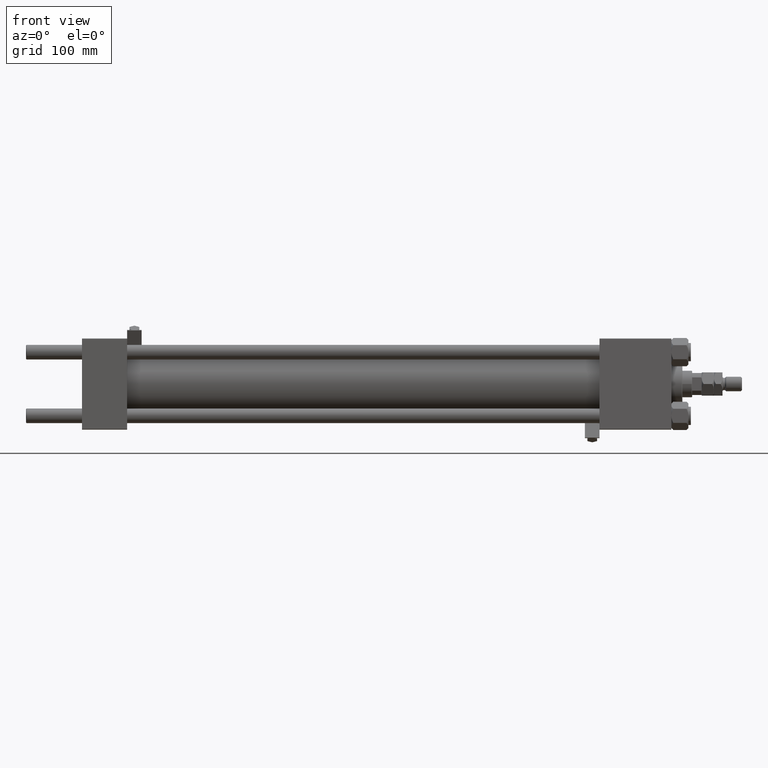
[diagram: clean part render]
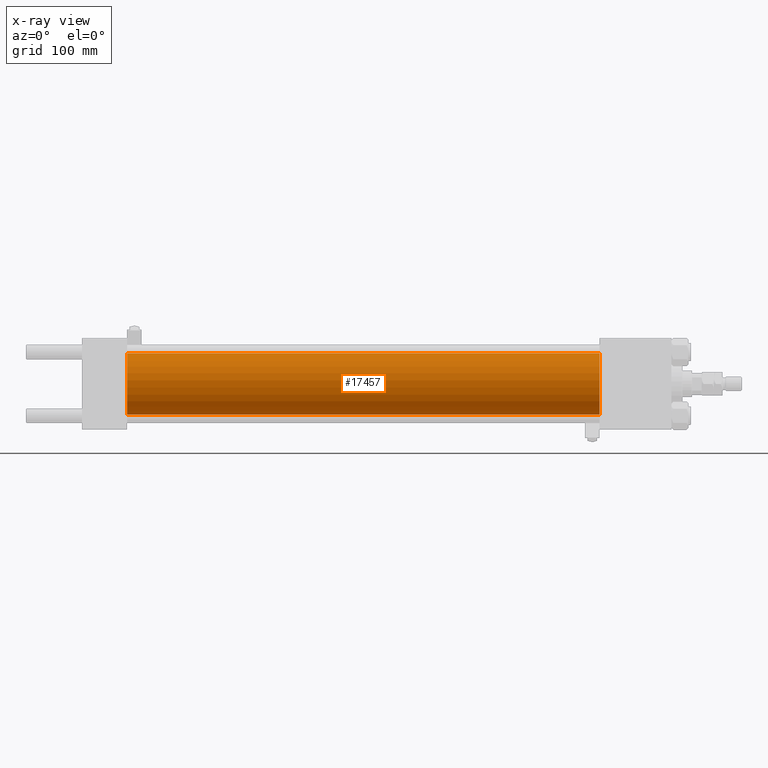
[diagram: x-ray — body ghosted, one internal face saturated and labeled with its STEP entity id]
A machine part, front view, then the same camera in x-ray: the body is ghosted and one INTERNAL B-rep face — a face not visible from any outside direction — is saturated and labeled: STEP entity #17457.
In plain terms, the highlighted cylindrical surface (edge-blend (fillet) strip) has radius 25 mm, axis along (-1, -0, -0).
Its self-contained STEP definition (entity closure, byte-faithful):
#1000 = CARTESIAN_POINT ( 'NONE',  ( 425.0000000000000000, 0.000000000000000000, 25.00000000000000000 ) ) ;
#1275 = EDGE_CURVE ( 'NONE', #35559, #29062, #19171, .T. ) ;
#3109 = AXIS2_PLACEMENT_3D ( 'NONE', #11405, #39719, #35480 ) ;
#3469 = AXIS2_PLACEMENT_3D ( 'NONE', #42866, #6595, #30937 ) ;
#5127 = CIRCLE ( 'NONE', #3469, 25.00000000000000000 ) ;
#6252 = DIRECTION ( 'NONE',  ( -1.000000000000000000, -0.000000000000000000, -0.000000000000000000 ) ) ;
#6595 = DIRECTION ( 'NONE',  ( 1.000000000000000000, 0.000000000000000000, 0.000000000000000000 ) ) ;
#7320 = ORIENTED_EDGE ( 'NONE', *, *, #46359, .T. ) ;
#7659 = DIRECTION ( 'NONE',  ( 0.000000000000000000, 0.000000000000000000, 1.000000000000000000 ) ) ;
#7710 = ORIENTED_EDGE ( 'NONE', *, *, #36234, .F. ) ;
#7920 = DIRECTION ( 'NONE',  ( -1.000000000000000000, -0.000000000000000000, -0.000000000000000000 ) ) ;
#9692 = CARTESIAN_POINT ( 'NONE',  ( 37.00000000000000000, 0.000000000000000000, 25.00000000000000000 ) ) ;
#10060 = LINE ( 'NONE', #42609, #26552 ) ;
#10754 = LINE ( 'NONE', #42529, #22179 ) ;
#11405 = CARTESIAN_POINT ( 'NONE',  ( 425.0000000000000000, 0.000000000000000000, 0.000000000000000000 ) ) ;
#13780 = DIRECTION ( 'NONE',  ( -1.000000000000000000, -0.000000000000000000, -0.000000000000000000 ) ) ;
#15368 = AXIS2_PLACEMENT_3D ( 'NONE', #48692, #7920, #7659 ) ;
#15615 = CYLINDRICAL_SURFACE ( 'NONE', #15368, 25.00000000000000000 ) ;
#16975 = ORIENTED_EDGE ( 'NONE', *, *, #39761, .F. ) ;
#17457 = ADVANCED_FACE ( 'NONE', ( #23533 ), #15615, .F. ) ;
#18937 = VERTEX_POINT ( 'NONE', #9692 ) ;
#19171 = CIRCLE ( 'NONE', #3109, 25.00000000000000000 ) ;
#19569 = ORIENTED_EDGE ( 'NONE', *, *, #1275, .T. ) ;
#21881 = CARTESIAN_POINT ( 'NONE',  ( 37.00000000000000000, 3.061616997868382254E-15, -25.00000000000000000 ) ) ;
#22179 = VECTOR ( 'NONE', #6252, 1000.000000000000000 ) ;
#23533 = FACE_OUTER_BOUND ( 'NONE', #29313, .T. ) ;
#26552 = VECTOR ( 'NONE', #13780, 1000.000000000000000 ) ;
#26802 = CARTESIAN_POINT ( 'NONE',  ( 425.0000000000000000, 3.061616997868382254E-15, -25.00000000000000000 ) ) ;
#29062 = VERTEX_POINT ( 'NONE', #26802 ) ;
#29313 = EDGE_LOOP ( 'NONE', ( #19569, #7320, #7710, #16975 ) ) ;
#30937 = DIRECTION ( 'NONE',  ( 0.000000000000000000, 0.000000000000000000, -1.000000000000000000 ) ) ;
#31947 = VERTEX_POINT ( 'NONE', #21881 ) ;
#35480 = DIRECTION ( 'NONE',  ( 0.000000000000000000, 0.000000000000000000, -1.000000000000000000 ) ) ;
#35559 = VERTEX_POINT ( 'NONE', #1000 ) ;
#36234 = EDGE_CURVE ( 'NONE', #18937, #31947, #5127, .T. ) ;
#39719 = DIRECTION ( 'NONE',  ( 1.000000000000000000, 0.000000000000000000, 0.000000000000000000 ) ) ;
#39761 = EDGE_CURVE ( 'NONE', #35559, #18937, #10754, .T. ) ;
#42529 = CARTESIAN_POINT ( 'NONE',  ( 425.0000000000000000, 0.000000000000000000, 25.00000000000000000 ) ) ;
#42609 = CARTESIAN_POINT ( 'NONE',  ( 425.0000000000000000, 3.061616997868382254E-15, -25.00000000000000000 ) ) ;
#42866 = CARTESIAN_POINT ( 'NONE',  ( 37.00000000000000000, 0.000000000000000000, 0.000000000000000000 ) ) ;
#46359 = EDGE_CURVE ( 'NONE', #29062, #31947, #10060, .T. ) ;
#48692 = CARTESIAN_POINT ( 'NONE',  ( 425.0000000000000000, 0.000000000000000000, 0.000000000000000000 ) ) ;